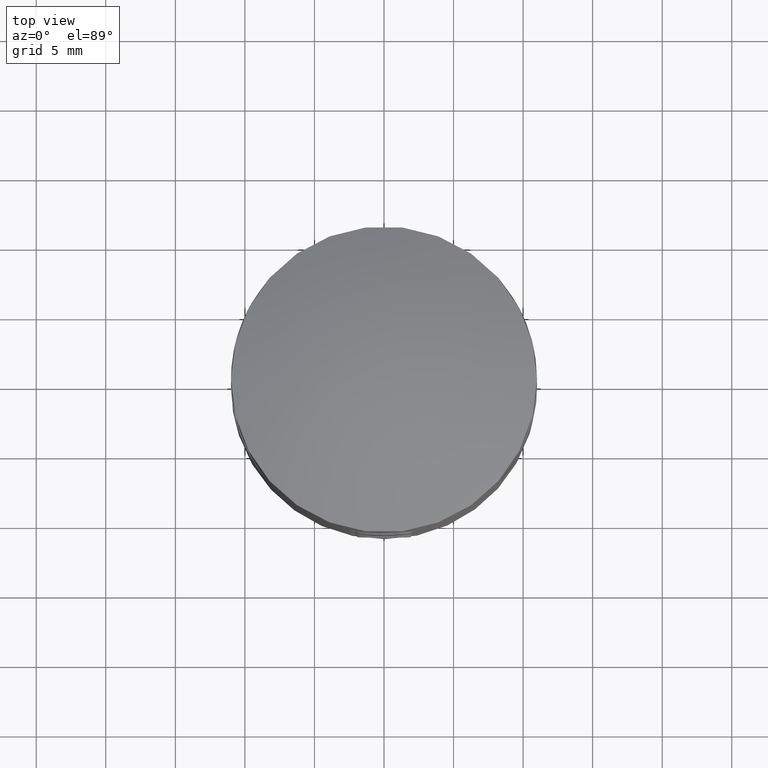
[diagram: clean part render]
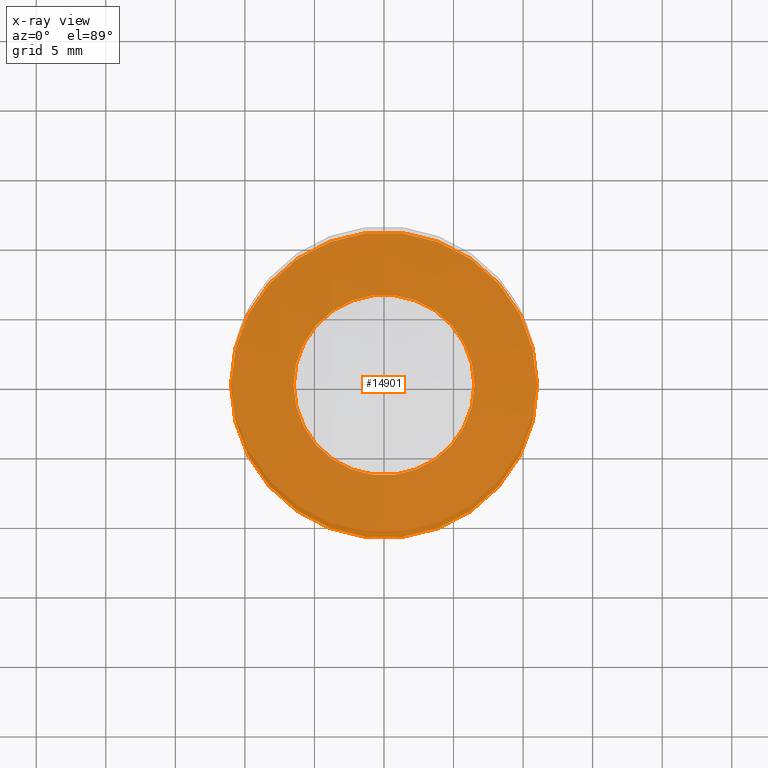
[diagram: x-ray — body ghosted, one internal face saturated and labeled with its STEP entity id]
A machine part, top view, then the same camera in x-ray: the body is ghosted and one INTERNAL B-rep face — a face not visible from any outside direction — is saturated and labeled: STEP entity #14901.
In plain terms, the highlighted planar face has unit normal (0, 0, 1).
Its self-contained STEP definition (entity closure, byte-faithful):
#65 = CARTESIAN_POINT ( 'NONE',  ( 0.0000000000000000000, 0.0000000000000000000, 0.0000000000000000000 ) ) ;
#1441 = PLANE ( 'NONE',  #10022 ) ;
#3616 = VERTEX_POINT ( 'NONE', #11739 ) ;
#4393 = FACE_BOUND ( 'NONE', #21021, .T. ) ;
#4998 = AXIS2_PLACEMENT_3D ( 'NONE', #7949, #20850, #20770 ) ;
#6831 = EDGE_CURVE ( 'NONE', #3616, #3616, #8141, .T. ) ;
#7949 = CARTESIAN_POINT ( 'NONE',  ( 0.0000000000000000000, 0.0000000000000000000, 0.0000000000000000000 ) ) ;
#7995 = CIRCLE ( 'NONE', #4998, 11.00000000000000000 ) ;
#8141 = CIRCLE ( 'NONE', #16736, 6.500000000000016900 ) ;
#9978 = CARTESIAN_POINT ( 'NONE',  ( 11.00000000000000000, 0.0000000000000000000, 0.0000000000000000000 ) ) ;
#10022 = AXIS2_PLACEMENT_3D ( 'NONE', #23693, #14358, #16212 ) ;
#11739 = CARTESIAN_POINT ( 'NONE',  ( 6.500000000000016900, 0.0000000000000000000, 0.0000000000000000000 ) ) ;
#12833 = DIRECTION ( 'NONE',  ( -0.0000000000000000000, -0.0000000000000000000, 1.000000000000000000 ) ) ;
#13528 = ORIENTED_EDGE ( 'NONE', *, *, #6831, .T. ) ;
#13973 = ORIENTED_EDGE ( 'NONE', *, *, #20777, .F. ) ;
#14358 = DIRECTION ( 'NONE',  ( 0.0000000000000000000, -0.0000000000000000000, 1.000000000000000000 ) ) ;
#14901 = ADVANCED_FACE ( 'NONE', ( #4393, #17325 ), #1441, .F. ) ;
#16212 = DIRECTION ( 'NONE',  ( 1.000000000000000000, 0.0000000000000000000, 0.0000000000000000000 ) ) ;
#16736 = AXIS2_PLACEMENT_3D ( 'NONE', #65, #12833, #20456 ) ;
#17325 = FACE_OUTER_BOUND ( 'NONE', #18113, .T. ) ;
#18113 = EDGE_LOOP ( 'NONE', ( #13973 ) ) ;
#19679 = VERTEX_POINT ( 'NONE', #9978 ) ;
#20456 = DIRECTION ( 'NONE',  ( 1.000000000000000000, 0.0000000000000000000, 0.0000000000000000000 ) ) ;
#20770 = DIRECTION ( 'NONE',  ( 1.000000000000000000, 0.0000000000000000000, 0.0000000000000000000 ) ) ;
#20777 = EDGE_CURVE ( 'NONE', #19679, #19679, #7995, .T. ) ;
#20850 = DIRECTION ( 'NONE',  ( -0.0000000000000000000, -0.0000000000000000000, 1.000000000000000000 ) ) ;
#21021 = EDGE_LOOP ( 'NONE', ( #13528 ) ) ;
#23693 = CARTESIAN_POINT ( 'NONE',  ( 0.0000000000000000000, 0.0000000000000000000, 0.0000000000000000000 ) ) ;